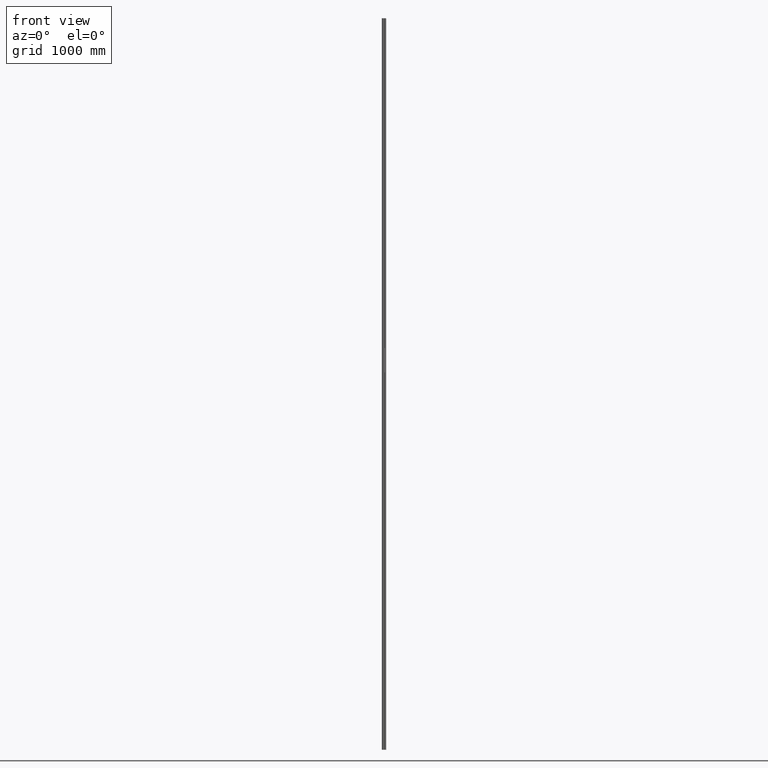
[diagram: clean part render]
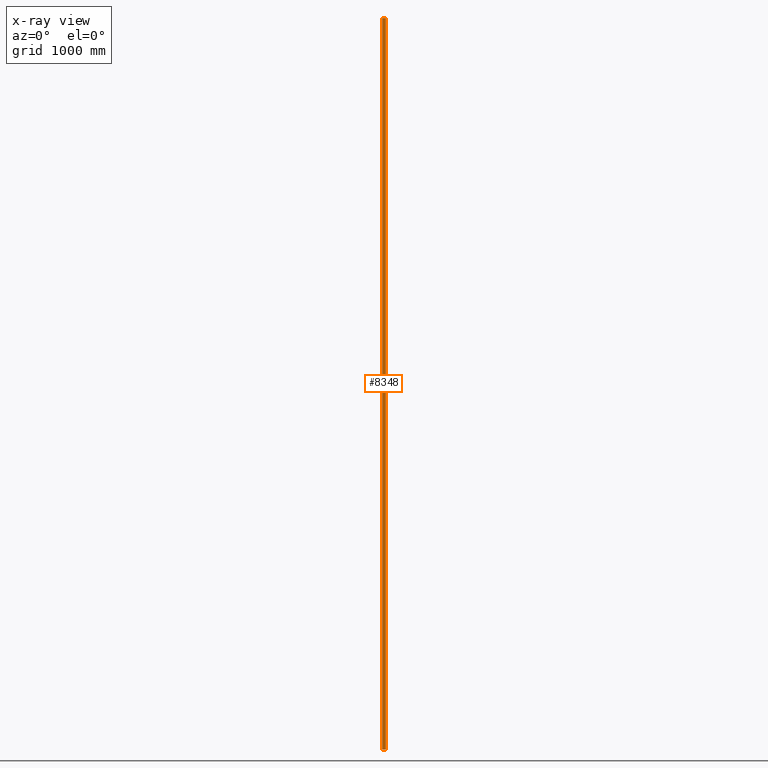
[diagram: x-ray — body ghosted, one internal face saturated and labeled with its STEP entity id]
A machine part, front view, then the same camera in x-ray: the body is ghosted and one INTERNAL B-rep face — a face not visible from any outside direction — is saturated and labeled: STEP entity #8348.
In plain terms, the highlighted planar face has unit normal (0, -1, 0).
Its self-contained STEP definition (entity closure, byte-faithful):
#165 = VECTOR ( 'NONE', #8110, 1000.000000000000000 ) ;
#216 = VERTEX_POINT ( 'NONE', #6980 ) ;
#364 = ORIENTED_EDGE ( 'NONE', *, *, #6457, .T. ) ;
#896 = CARTESIAN_POINT ( 'NONE',  ( -13.99999999999999467, 31.00000000000000000, 3000.000000000000000 ) ) ;
#979 = DIRECTION ( 'NONE',  ( -0.000000000000000000, -0.000000000000000000, -1.000000000000000000 ) ) ;
#1189 = EDGE_LOOP ( 'NONE', ( #5740, #11023, #10865, #364 ) ) ;
#1432 = VECTOR ( 'NONE', #2099, 1000.000000000000000 ) ;
#1591 = LINE ( 'NONE', #11020, #1432 ) ;
#1955 = VERTEX_POINT ( 'NONE', #11601 ) ;
#2099 = DIRECTION ( 'NONE',  ( -1.000000000000000000, -0.000000000000000000, -0.000000000000000000 ) ) ;
#2204 = LINE ( 'NONE', #6034, #165 ) ;
#3002 = EDGE_CURVE ( 'NONE', #7528, #216, #1591, .T. ) ;
#3308 = VECTOR ( 'NONE', #979, 1000.000000000000000 ) ;
#3471 = LINE ( 'NONE', #896, #3308 ) ;
#4170 = DIRECTION ( 'NONE',  ( 0.000000000000000000, -0.000000000000000000, -1.000000000000000000 ) ) ;
#4474 = EDGE_CURVE ( 'NONE', #1955, #216, #3471, .T. ) ;
#4846 = EDGE_CURVE ( 'NONE', #11266, #1955, #2204, .T. ) ;
#5118 = PLANE ( 'NONE',  #10140 ) ;
#5731 = CARTESIAN_POINT ( 'NONE',  ( 13.99999999999999467, 31.00000000000000000, -3000.000000000000000 ) ) ;
#5740 = ORIENTED_EDGE ( 'NONE', *, *, #3002, .T. ) ;
#6034 = CARTESIAN_POINT ( 'NONE',  ( 0.000000000000000000, 31.00000000000000000, 3000.000000000000000 ) ) ;
#6170 = DIRECTION ( 'NONE',  ( 0.000000000000000000, -1.000000000000000000, 0.000000000000000000 ) ) ;
#6457 = EDGE_CURVE ( 'NONE', #11266, #7528, #10454, .T. ) ;
#6980 = CARTESIAN_POINT ( 'NONE',  ( -13.99999999999999467, 31.00000000000000000, -3000.000000000000000 ) ) ;
#7333 = CARTESIAN_POINT ( 'NONE',  ( 13.99999999999999467, 31.00000000000000000, 3000.000000000000000 ) ) ;
#7528 = VERTEX_POINT ( 'NONE', #5731 ) ;
#8110 = DIRECTION ( 'NONE',  ( -1.000000000000000000, -0.000000000000000000, -0.000000000000000000 ) ) ;
#8204 = CARTESIAN_POINT ( 'NONE',  ( 0.000000000000000000, 31.00000000000000000, 3000.000000000000000 ) ) ;
#8348 = ADVANCED_FACE ( 'NONE', ( #10907 ), #5118, .F. ) ;
#8403 = VECTOR ( 'NONE', #9413, 1000.000000000000000 ) ;
#9413 = DIRECTION ( 'NONE',  ( -0.000000000000000000, -0.000000000000000000, -1.000000000000000000 ) ) ;
#10140 = AXIS2_PLACEMENT_3D ( 'NONE', #8204, #6170, #4170 ) ;
#10454 = LINE ( 'NONE', #7333, #8403 ) ;
#10710 = CARTESIAN_POINT ( 'NONE',  ( 13.99999999999999467, 31.00000000000000000, 3000.000000000000000 ) ) ;
#10865 = ORIENTED_EDGE ( 'NONE', *, *, #4846, .F. ) ;
#10907 = FACE_OUTER_BOUND ( 'NONE', #1189, .T. ) ;
#11020 = CARTESIAN_POINT ( 'NONE',  ( 0.000000000000000000, 31.00000000000000000, -3000.000000000000000 ) ) ;
#11023 = ORIENTED_EDGE ( 'NONE', *, *, #4474, .F. ) ;
#11266 = VERTEX_POINT ( 'NONE', #10710 ) ;
#11601 = CARTESIAN_POINT ( 'NONE',  ( -13.99999999999999467, 31.00000000000000000, 3000.000000000000000 ) ) ;